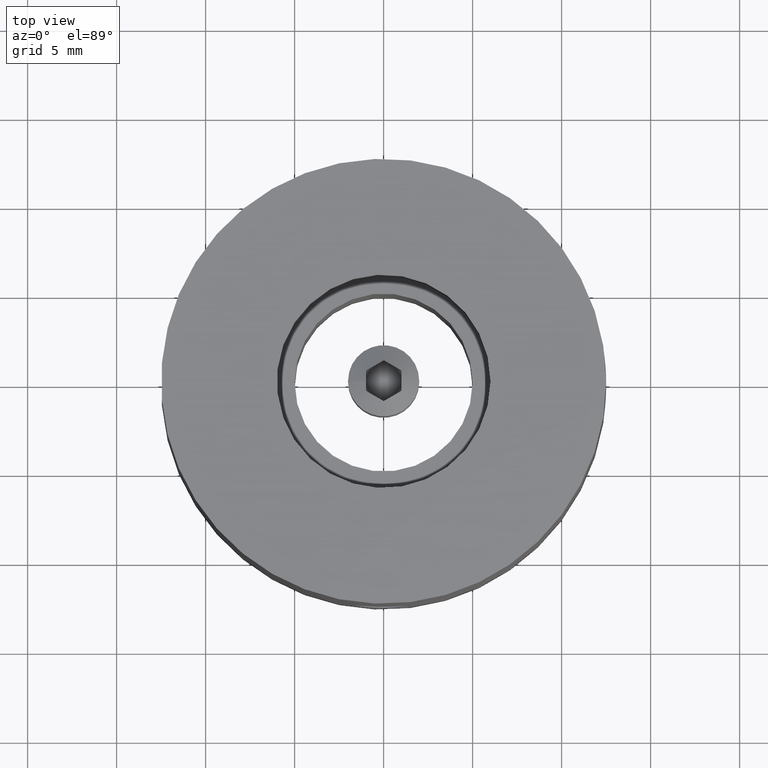
[diagram: clean part render]
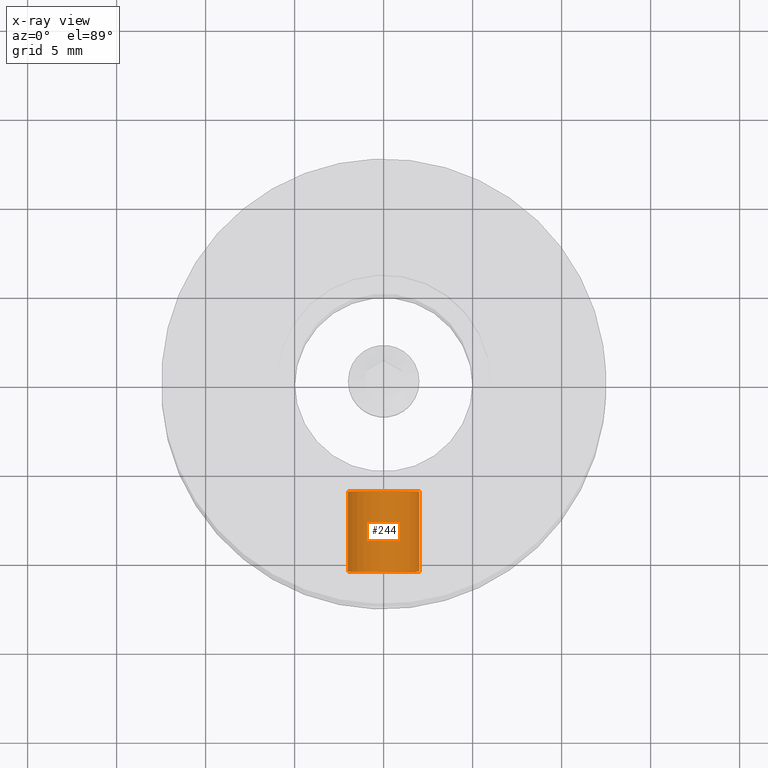
[diagram: x-ray — body ghosted, one internal face saturated and labeled with its STEP entity id]
A machine part, top view, then the same camera in x-ray: the body is ghosted and one INTERNAL B-rep face — a face not visible from any outside direction — is saturated and labeled: STEP entity #244.
In plain terms, the highlighted cylindrical surface (bore or boss wall) has radius 2 mm, axis along (0, -1, 0).
Its self-contained STEP definition (entity closure, byte-faithful):
#244 = ADVANCED_FACE( '', ( #301, #302 ), #303, .T. );
#301 = FACE_OUTER_BOUND( '', #361, .T. );
#302 = FACE_OUTER_BOUND( '', #362, .T. );
#303 = CYLINDRICAL_SURFACE( '', #363, 2.00000000000000 );
#361 = EDGE_LOOP( '', ( #487 ) );
#362 = EDGE_LOOP( '', ( #488 ) );
#363 = AXIS2_PLACEMENT_3D( '', #489, #490, #491 );
#487 = ORIENTED_EDGE( '', *, *, #509, .T. );
#488 = ORIENTED_EDGE( '', *, *, #530, .F. );
#489 = CARTESIAN_POINT( '', ( 0.000000000000000, 0.000000000000000, 0.000000000000000 ) );
#490 = DIRECTION( '', ( 0.000000000000000, -0.000000000000000, 1.00000000000000 ) );
#491 = DIRECTION( '', ( -1.00000000000000, 0.000000000000000, 0.000000000000000 ) );
#509 = EDGE_CURVE( '', #555, #555, #556, .T. );
#530 = EDGE_CURVE( '', #589, #589, #590, .T. );
#555 = VERTEX_POINT( '', #831 );
#556 = CIRCLE( '', #832, 2.00000000000000 );
#589 = VERTEX_POINT( '', #907 );
#590 = CIRCLE( '', #908, 2.00000000000000 );
#831 = CARTESIAN_POINT( '', ( -2.00000000000000, 0.000000000000000, 5.50000000000000 ) );
#832 = AXIS2_PLACEMENT_3D( '', #933, #934, #935 );
#907 = CARTESIAN_POINT( '', ( -2.00000000000000, 0.000000000000000, 1.00000000000000 ) );
#908 = AXIS2_PLACEMENT_3D( '', #951, #952, #953 );
#933 = CARTESIAN_POINT( '', ( 0.000000000000000, 0.000000000000000, 5.50000000000000 ) );
#934 = DIRECTION( '', ( -0.000000000000000, 0.000000000000000, -1.00000000000000 ) );
#935 = DIRECTION( '', ( -1.00000000000000, 0.000000000000000, 0.000000000000000 ) );
#951 = CARTESIAN_POINT( '', ( 0.000000000000000, 0.000000000000000, 1.00000000000000 ) );
#952 = DIRECTION( '', ( -0.000000000000000, 0.000000000000000, -1.00000000000000 ) );
#953 = DIRECTION( '', ( -1.00000000000000, 0.000000000000000, 0.000000000000000 ) );